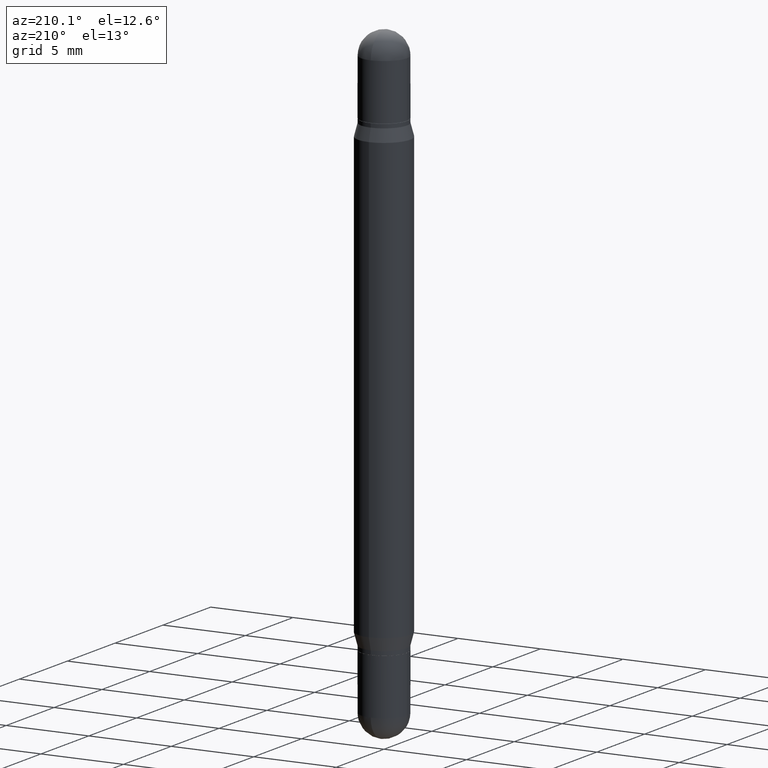
[diagram: clean part render]
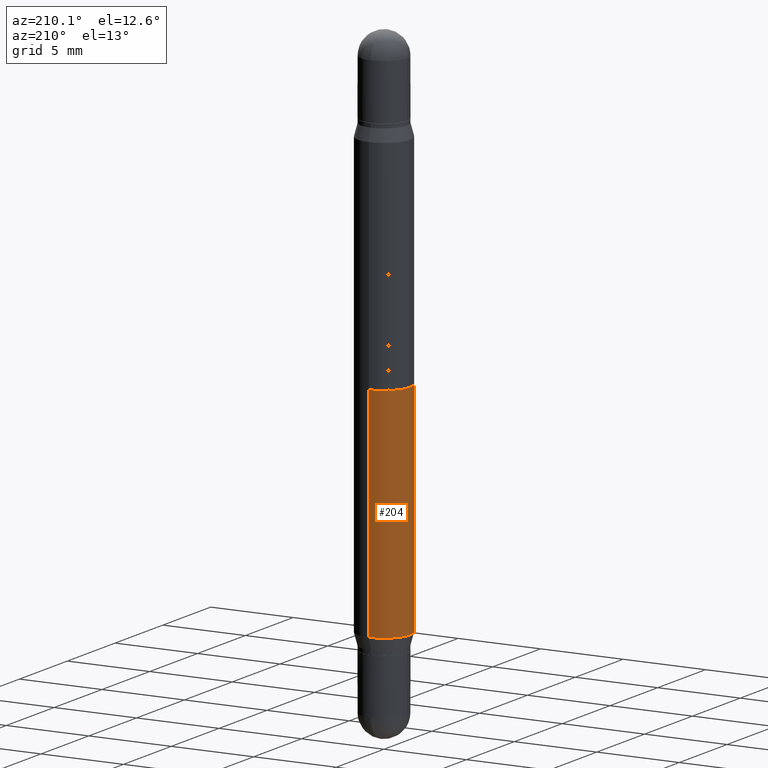
[diagram: same view with one face highlighted and labeled with its STEP entity id]
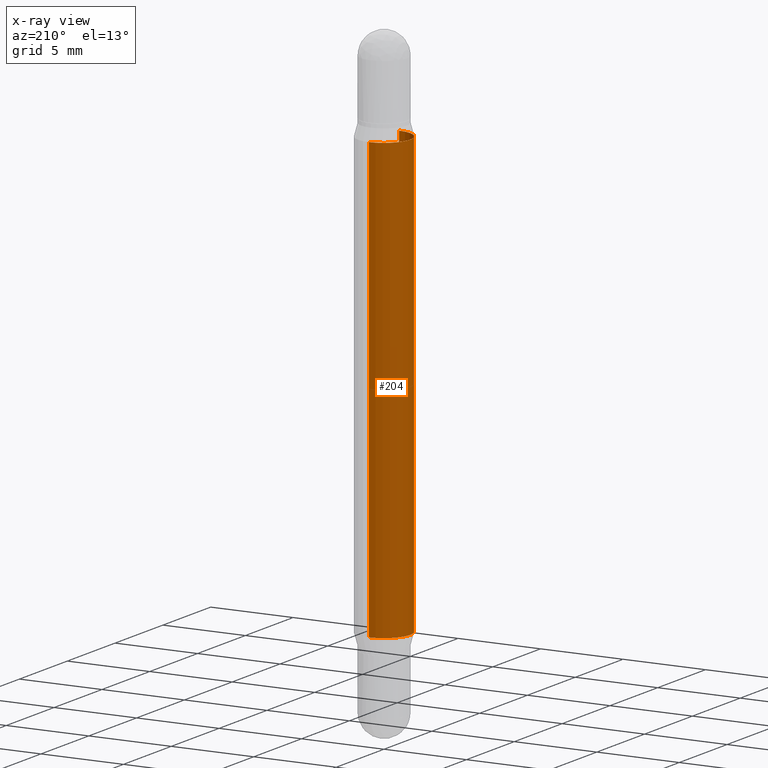
[diagram: x-ray of the same camera — body ghosted, the highlighted face saturated]
A machine part, auxiliary view. The second image highlights one B-rep face of the part: STEP entity #204.
The next image is the same camera in x-ray: the body ghosted, the highlighted face saturated — about 0% of this face is hidden behind the body in this view.
In plain terms, the highlighted cylindrical surface (edge-blend (fillet) strip) has radius 1.5875 mm, axis along (-0, -0, -1).
Its self-contained STEP definition (entity closure, byte-faithful):
#57 = CIRCLE ( 'NONE', #1032, 0.06250000000000000000 ) ;
#72 = AXIS2_PLACEMENT_3D ( 'NONE', #1097, #512, #335 ) ;
#79 = ORIENTED_EDGE ( 'NONE', *, *, #1054, .T. ) ;
#87 = EDGE_LOOP ( 'NONE', ( #324, #79, #656, #791 ) ) ;
#88 = DIRECTION ( 'NONE',  ( -2.445489716498267051E-29, 3.491451394084601576E-15, 1.000000000000000000 ) ) ;
#200 = VERTEX_POINT ( 'NONE', #1025 ) ;
#204 = ADVANCED_FACE ( 'NONE', ( #589 ), #935, .T. ) ;
#207 = VECTOR ( 'NONE', #775, 39.37007874015748143 ) ;
#247 = CARTESIAN_POINT ( 'NONE',  ( 4.287811248607206733E-16, 0.06249999999999477501, -1.500000000000000666 ) ) ;
#283 = CIRCLE ( 'NONE', #1078, 0.06250000000000000000 ) ;
#324 = ORIENTED_EDGE ( 'NONE', *, *, #684, .F. ) ;
#335 = DIRECTION ( 'NONE',  ( -6.982962677686265922E-15, -1.000000000000000000, 4.370956789862821150E-15 ) ) ;
#385 = LINE ( 'NONE', #719, #416 ) ;
#416 = VECTOR ( 'NONE', #731, 39.37007874015748143 ) ;
#430 = DIRECTION ( 'NONE',  ( 2.445489716498267051E-29, 3.479644411736372261E-15, 1.000000000000000000 ) ) ;
#441 = CARTESIAN_POINT ( 'NONE',  ( -4.364351673553605094E-16, -0.06250000000000079103, -0.2261099962990385792 ) ) ;
#475 = VERTEX_POINT ( 'NONE', #648 ) ;
#512 = DIRECTION ( 'NONE',  ( -2.445489716498267051E-29, -3.479644411736372261E-15, -1.000000000000000000 ) ) ;
#588 = LINE ( 'NONE', #247, #207 ) ;
#589 = FACE_OUTER_BOUND ( 'NONE', #87, .T. ) ;
#648 = CARTESIAN_POINT ( 'NONE',  ( 4.287811248607390144E-16, 0.06249999999999555217, -1.273890003700961948 ) ) ;
#656 = ORIENTED_EDGE ( 'NONE', *, *, #1103, .T. ) ;
#684 = EDGE_CURVE ( 'NONE', #782, #1095, #283, .T. ) ;
#696 = CARTESIAN_POINT ( 'NONE',  ( 3.115284904000640864E-29, -4.447725029332160911E-15, -1.273890003700961726 ) ) ;
#719 = CARTESIAN_POINT ( 'NONE',  ( -4.364351673553916201E-16, -0.06250000000000521805, -1.500000000000000222 ) ) ;
#731 = DIRECTION ( 'NONE',  ( -2.445489716498267051E-29, -3.479644411736372655E-15, -1.000000000000000000 ) ) ;
#773 = DIRECTION ( 'NONE',  ( -6.982962677686265922E-15, -1.000000000000000000, 3.278217592397115862E-15 ) ) ;
#775 = DIRECTION ( 'NONE',  ( -2.445489716498267051E-29, -3.479644411736372655E-15, -1.000000000000000000 ) ) ;
#782 = VERTEX_POINT ( 'NONE', #975 ) ;
#791 = ORIENTED_EDGE ( 'NONE', *, *, #802, .F. ) ;
#802 = EDGE_CURVE ( 'NONE', #1095, #200, #385, .T. ) ;
#858 = CARTESIAN_POINT ( 'NONE',  ( 3.115284904000640864E-29, -7.956376218208540482E-16, -0.2261099962990387735 ) ) ;
#935 = CYLINDRICAL_SURFACE ( 'NONE', #72, 0.06250000000000000000 ) ;
#975 = CARTESIAN_POINT ( 'NONE',  ( 4.287811248607517840E-16, 0.06249999999999920203, -0.2261099962990389678 ) ) ;
#1025 = CARTESIAN_POINT ( 'NONE',  ( -4.364351673553604601E-16, -0.06250000000000444089, -1.273890003700961282 ) ) ;
#1032 = AXIS2_PLACEMENT_3D ( 'NONE', #696, #88, #1040 ) ;
#1040 = DIRECTION ( 'NONE',  ( -6.982962677686265922E-15, -1.000000000000000000, 4.370956789862821150E-15 ) ) ;
#1054 = EDGE_CURVE ( 'NONE', #782, #475, #588, .T. ) ;
#1078 = AXIS2_PLACEMENT_3D ( 'NONE', #858, #430, #773 ) ;
#1095 = VERTEX_POINT ( 'NONE', #441 ) ;
#1097 = CARTESIAN_POINT ( 'NONE',  ( 0.000000000000000000, -5.228321854365732350E-15, -1.500000000000000444 ) ) ;
#1103 = EDGE_CURVE ( 'NONE', #475, #200, #57, .T. ) ;